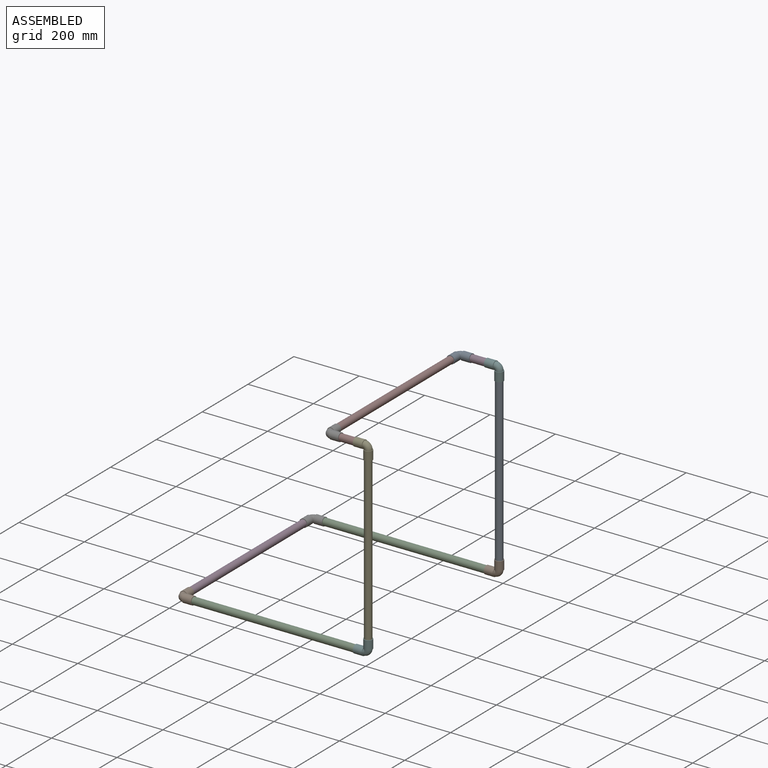
[diagram: assembled view]
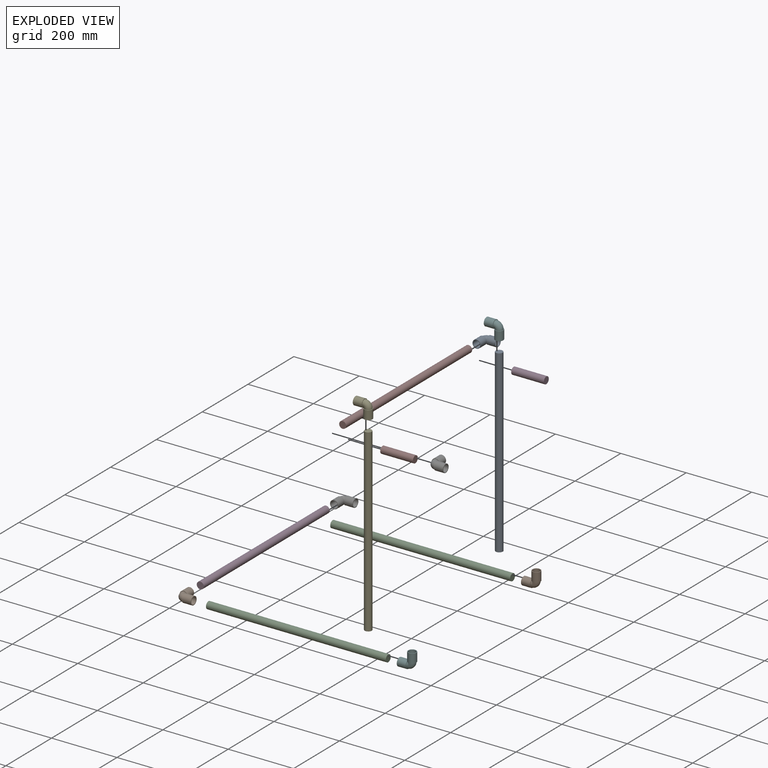
[diagram: exploded view]
GUIDED TOUR — MATED ASSEMBLY (Onshape document 93fc1fb9983ccf2371b93f54, AutoMate assembly 93fc1fb9983ccf2371b93f54_cd31502f067ef9bacffe31df_4b1e59dd0385b59e3c4ed5b4_default)

This assembly has 16 components, labeled P0..P15 below (a component is one placed occurrence of a part; the same part can appear more than once), held together by 15 mates. A mate is a constraint between two components; its type names the relative motion it leaves free:
  FASTENED — locks the two components together rigidly (no relative motion).
Axis/direction vectors are unit vectors and 'through' points are millimeter coordinates, both in the assembly's world frame.

MATES
  1. FASTENED "Fastened 8": P0 <-> P7, direction (0.000, -1.000, 0.000) through (-176.52, 364.74, 95.47) mm
  2. FASTENED "Fastened 8": P6 <-> P11, direction (0.000, -1.000, 0.000) through (-626.52, 364.74, -476.53) mm
  3. FASTENED "Fastened 2": P8 <-> P13, direction (0.000, 0.000, 1.000) through (-54.52, 375.74, 84.47) mm
  4. FASTENED "Fastened 11": P3 <-> P13, direction (1.000, 0.000, 0.000) through (-65.52, 375.74, 95.47) mm
  5. FASTENED "Fastened 4": P8 <-> P9, direction (0.000, 0.000, -1.000) through (-54.52, 375.74, -465.53) mm
  6. FASTENED "Fastened 9": P7 <-> P14, direction (0.000, -1.000, 0.000) through (-176.52, -185.26, 95.47) mm
  7. FASTENED "Fastened 10": P6 <-> P10, direction (1.000, 0.000, 0.000) through (-615.52, 375.74, -476.53) mm
  8. FASTENED "Fastened 5": P5 <-> P2, direction (-1.000, 0.000, 0.000) through (-65.52, -196.26, -476.53) mm
  9. FASTENED "Fastened 7": P1 <-> P2, direction (1.000, 0.000, 0.000) through (-615.52, -196.26, -476.53) mm
  10. FASTENED "Fastened 12": P4 <-> P15, direction (-1.000, 0.000, 0.000) through (-65.52, -196.26, 95.47) mm
  11. FASTENED "Fastened 1": P12 <-> P4, direction (0.000, 0.000, 1.000) through (-54.52, -196.26, 84.47) mm
  12. FASTENED "Fastened 13": P14 <-> P15, direction (1.000, 0.000, 0.000) through (-165.52, -196.26, 95.47) mm
  13. FASTENED "Fastened 6": P10 <-> P9, direction (1.000, 0.000, 0.000) through (-65.52, 375.74, -476.53) mm
  14. FASTENED "Fastened 3": P5 <-> P12, direction (0.000, 0.000, 1.000) through (-54.52, -196.26, -465.53) mm
  15. FASTENED "Fastened 9": P11 <-> P1, direction (0.000, -1.000, 0.000) through (-626.52, -185.26, -476.53) mm

ASSEMBLY ORDER
  1. P15 — the base component [order verified]
  2. P7 [order verified]
  3. P11 [order verified]
  4. P3 [order verified]
  5. P8 [order verified]
  6. P13 [order verified]
  7. P10 [order verified]
  8. P14 [order verified]
  9. P1 [order verified]
  10. P9 [order verified]
  11. P6 [order verified]
  12. P2 [order verified]
  13. P0 [order verified]
  14. P12 [order verified]
  15. P5 [order verified]
  16. P4 [order verified]
Order-tag legend:
  [order verified] — this step's position reverses a verified removal order: the component was checked to insert without passing through the ones already placed.

Of the 16 components, 8 carry the full construction recipe — the FeatureScript program that regenerates the part's solid from scratch; the rest are supplied as boundary geometry only.
Because this assembly has more than 12 components, the tour below covers the 12 most significant ones individually (every recipe-attached component first, then the largest by part volume), in assembly order; the remaining 4 are summarized together in a grouped section at the end.
Each toured component is shown spotlighted twice — in the assembled view, then in the exploded view, where a leader line traces a displaced component back to its assembled socket (saturated green if recipe-attached, orange if geometry-only; every other component desaturated gray) — followed by its recipe or geometry summary and the mates that hold it.
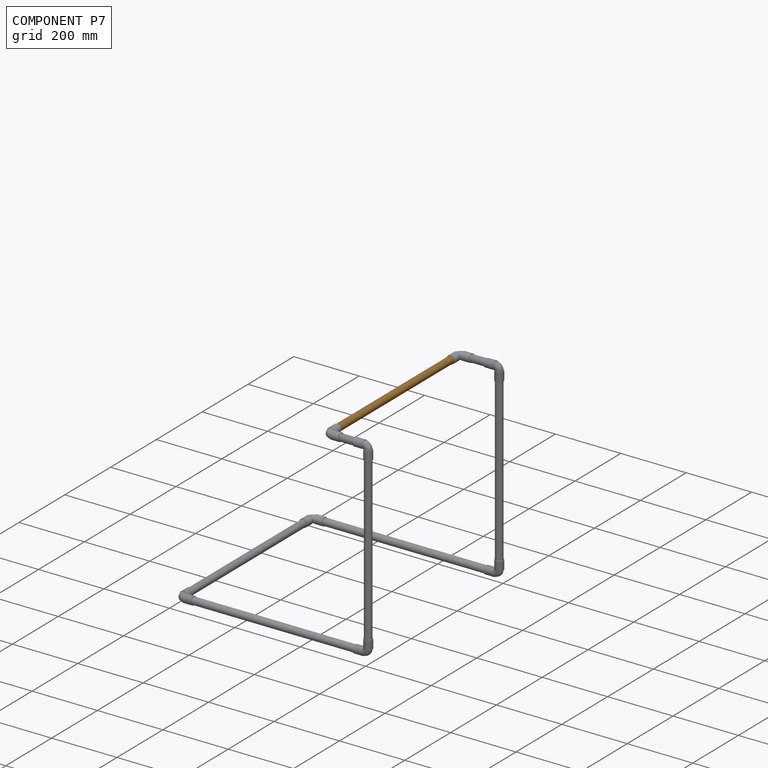
[diagram: component P7 — assembled]
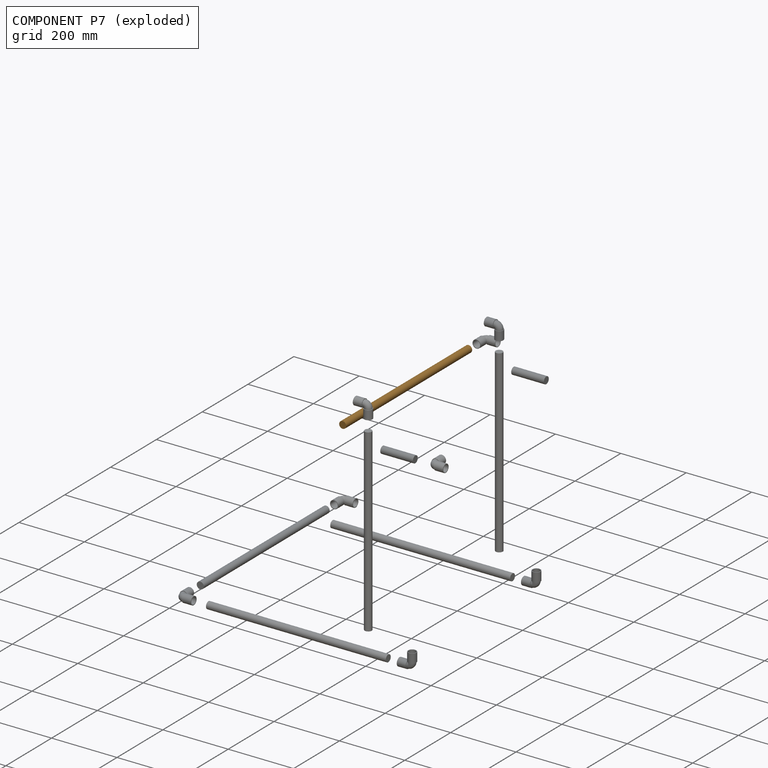
[diagram: component P7 — exploded]
COMPONENT P7 — geometry summary (no construction recipe available for this part):
  bounding box: 550.0 x 21.5 x 21.5 mm
  B-rep topology: 1 solid, 3 faces, 6 edges
  volume: 199678 mm^3 (79% of its bounding box)
  symmetry: revolution-symmetric about the x axis through its bounding-box center; 2-fold rotationally symmetric about the y axis; 2-fold rotationally symmetric about the z axis; mirror-symmetric across its x mid-plane, y mid-plane, z mid-plane
Held by: FASTENED mate "Fastened 8" to P0; FASTENED mate "Fastened 9" to P14.
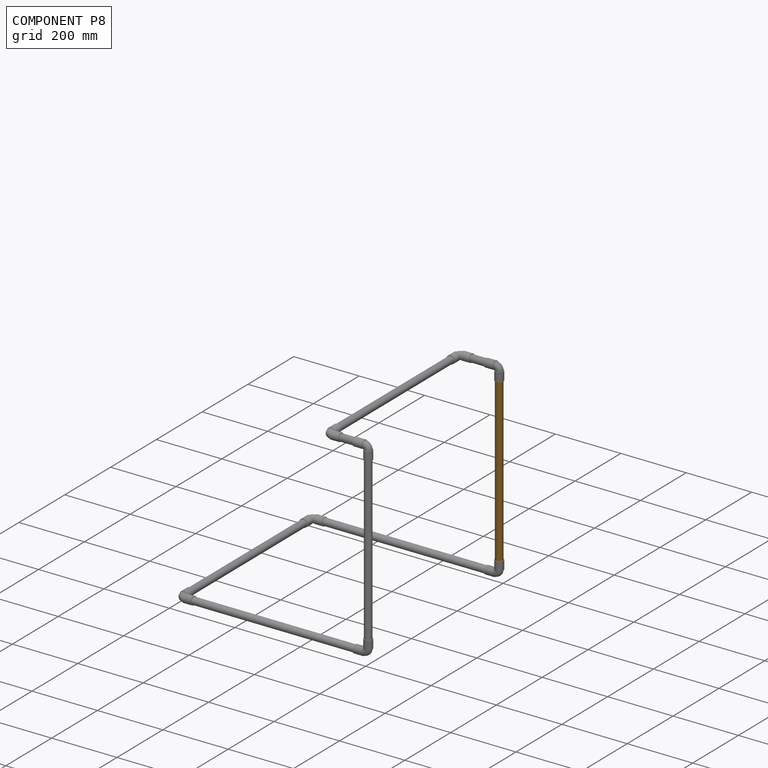
[diagram: component P8 — assembled]
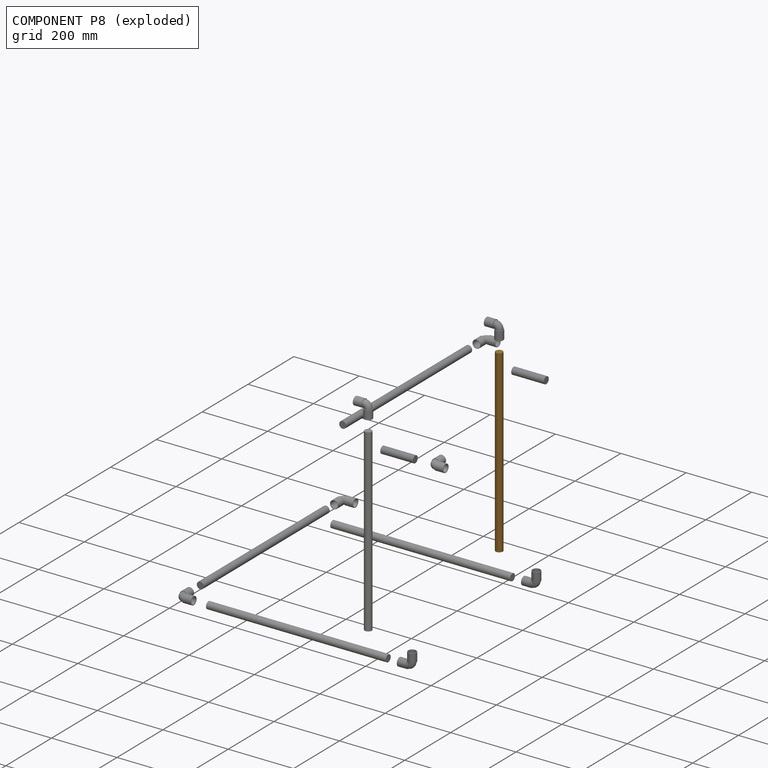
[diagram: component P8 — exploded]
COMPONENT P8 — geometry summary (no construction recipe available for this part):
  bounding box: 550.0 x 21.5 x 21.5 mm
  B-rep topology: 1 solid, 3 faces, 6 edges
  volume: 199678 mm^3 (79% of its bounding box)
  symmetry: revolution-symmetric about the x axis through its bounding-box center; 2-fold rotationally symmetric about the y axis; 2-fold rotationally symmetric about the z axis; mirror-symmetric across its x mid-plane, y mid-plane, z mid-plane
Held by: FASTENED mate "Fastened 2" to P13; FASTENED mate "Fastened 4" to P9.
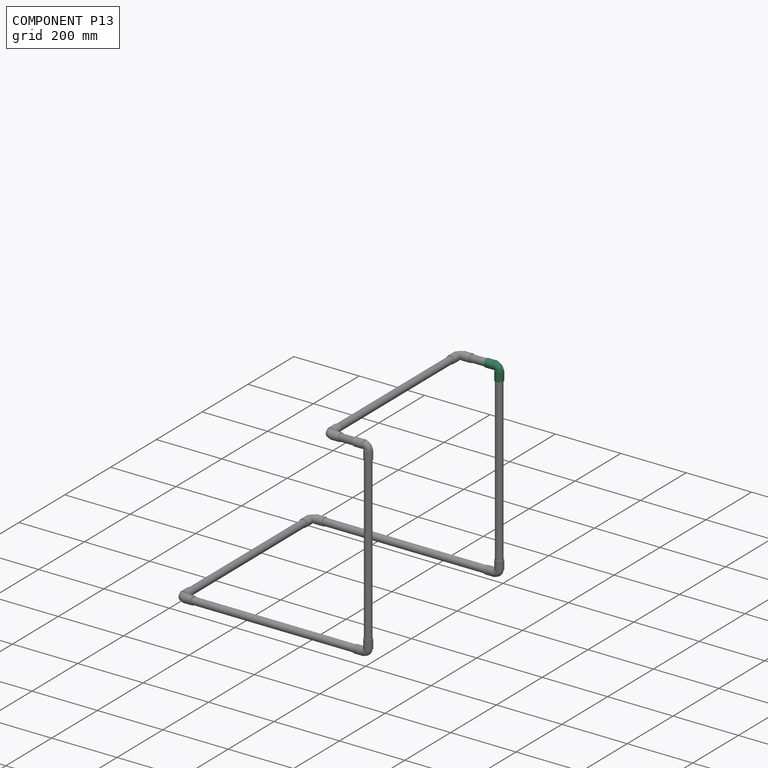
[diagram: component P13 — assembled]
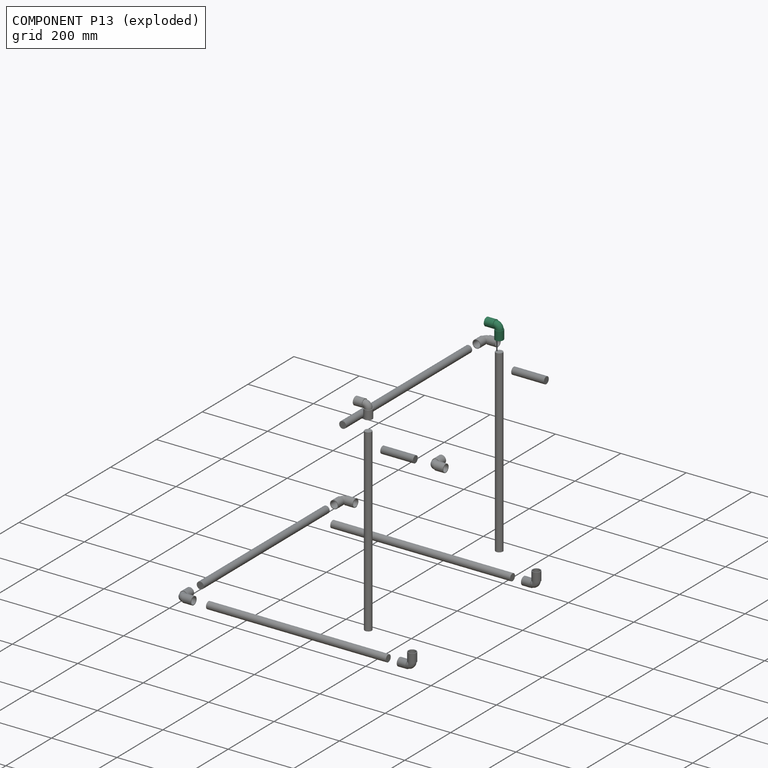
[diagram: component P13 — exploded]
COMPONENT P13 — same part as P0 (CADFS 00234429); its construction recipe is shown at P0.
Held by: FASTENED mate "Fastened 2" to P8; FASTENED mate "Fastened 11" to P3.
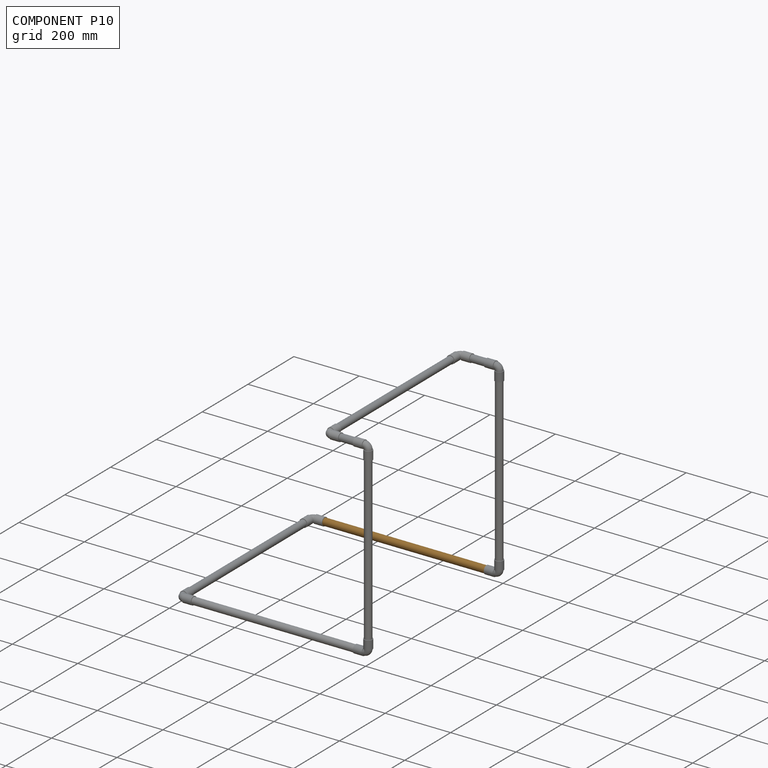
[diagram: component P10 — assembled]
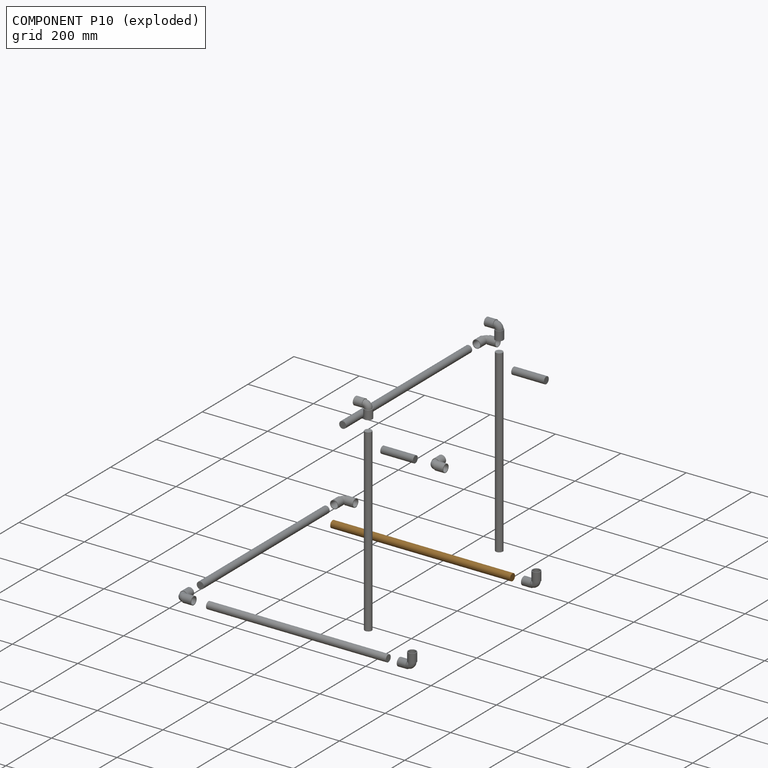
[diagram: component P10 — exploded]
COMPONENT P10 — geometry summary (no construction recipe available for this part):
  bounding box: 550.0 x 21.5 x 21.5 mm
  B-rep topology: 1 solid, 3 faces, 6 edges
  volume: 199678 mm^3 (79% of its bounding box)
  symmetry: revolution-symmetric about the x axis through its bounding-box center; 2-fold rotationally symmetric about the y axis; 2-fold rotationally symmetric about the z axis; mirror-symmetric across its x mid-plane, y mid-plane, z mid-plane
Held by: FASTENED mate "Fastened 10" to P6; FASTENED mate "Fastened 6" to P9.
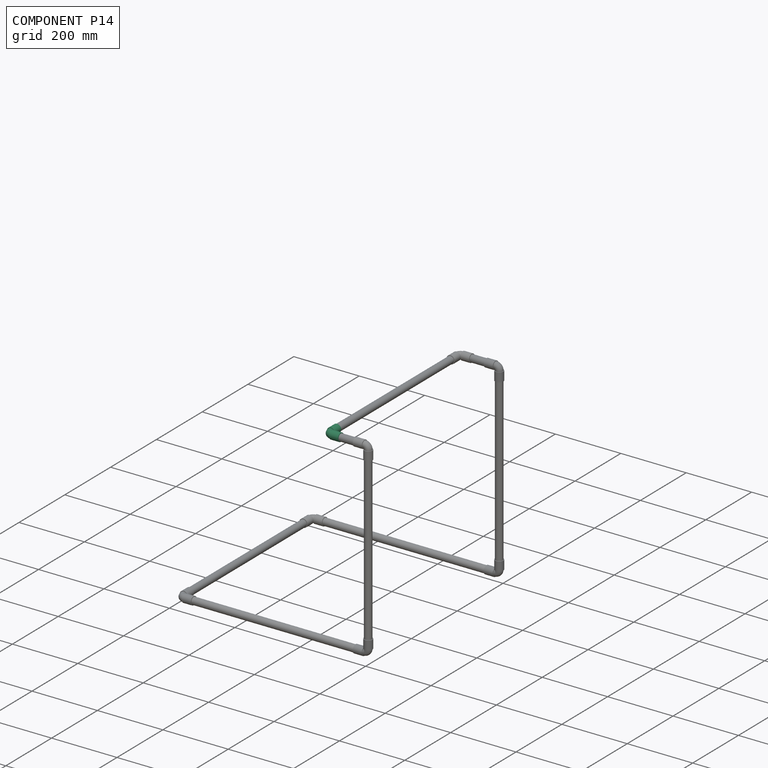
[diagram: component P14 — assembled]
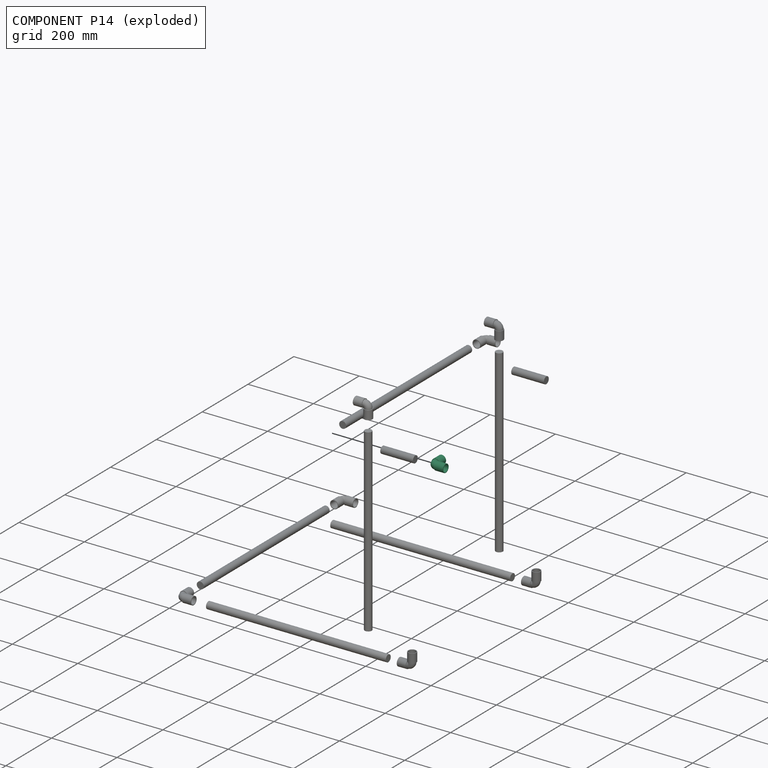
[diagram: component P14 — exploded]
COMPONENT P14 — same part as P0 (CADFS 00234429); its construction recipe is shown at P0.
Held by: FASTENED mate "Fastened 9" to P7; FASTENED mate "Fastened 13" to P15.
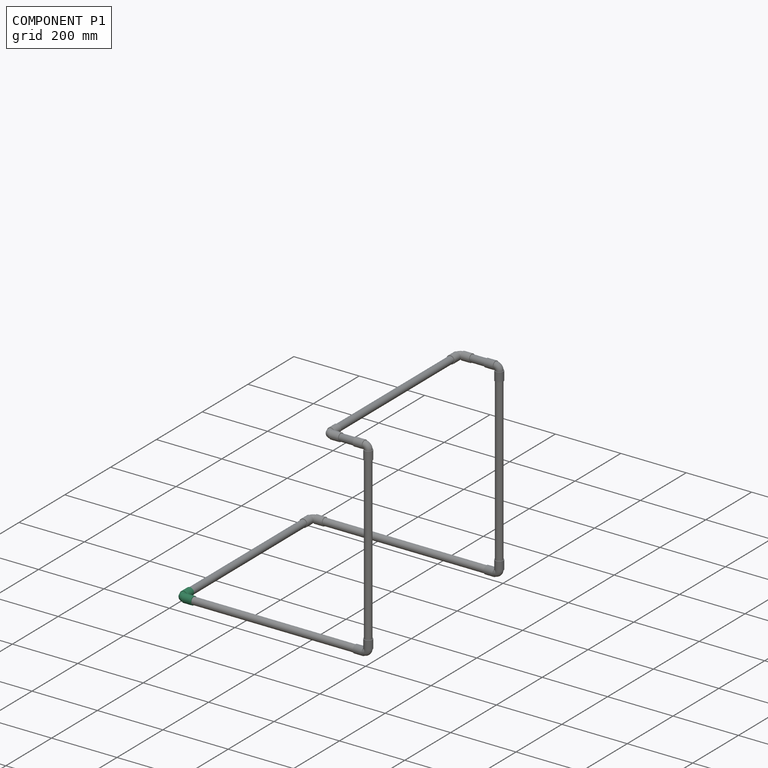
[diagram: component P1 — assembled]
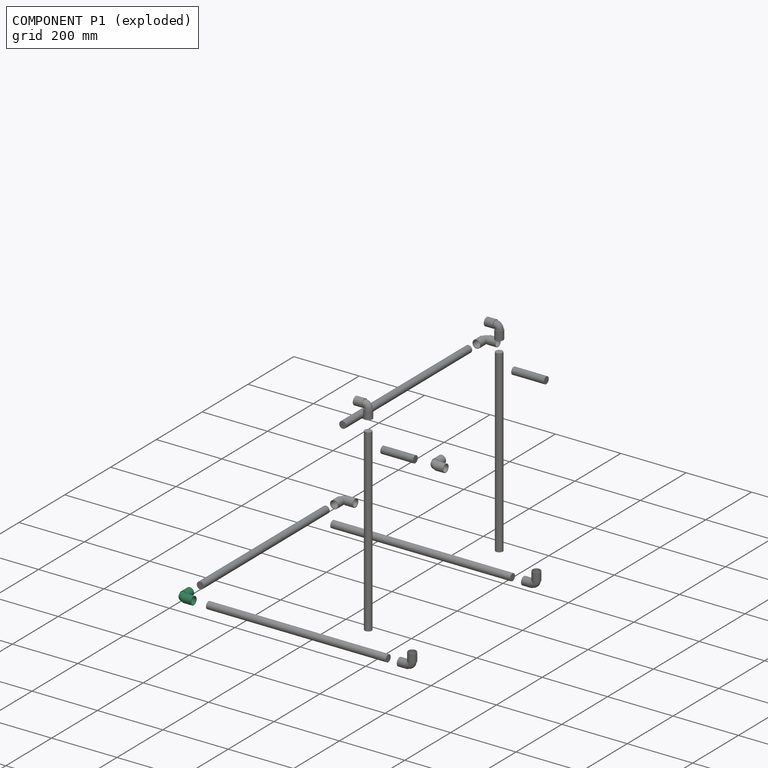
[diagram: component P1 — exploded]
COMPONENT P1 — same part as P0 (CADFS 00234429); its construction recipe is shown at P0.
Held by: FASTENED mate "Fastened 7" to P2; FASTENED mate "Fastened 9" to P11.
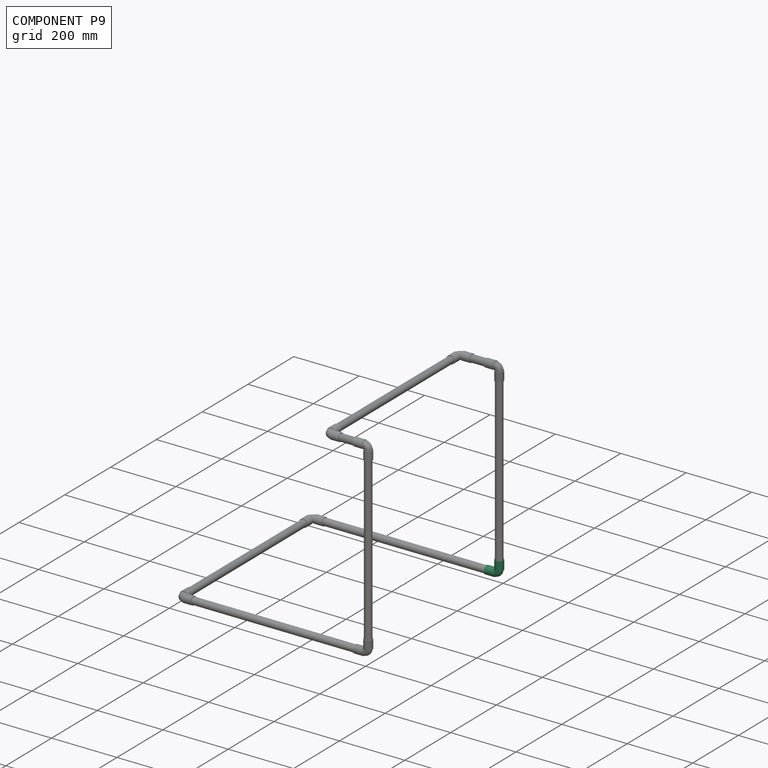
[diagram: component P9 — assembled]
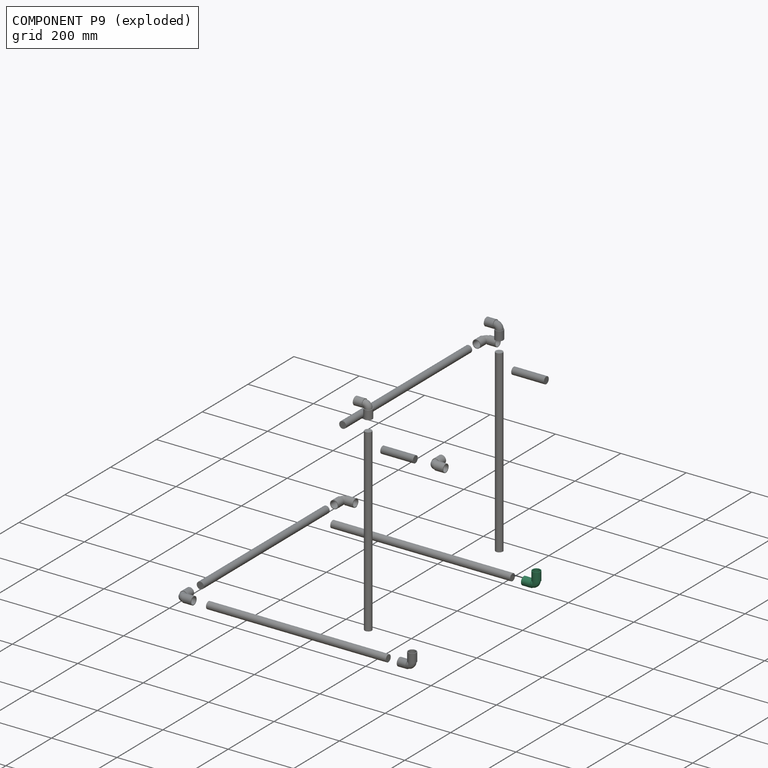
[diagram: component P9 — exploded]
COMPONENT P9 — same part as P0 (CADFS 00234429); its construction recipe is shown at P0.
Held by: FASTENED mate "Fastened 4" to P8; FASTENED mate "Fastened 6" to P10.
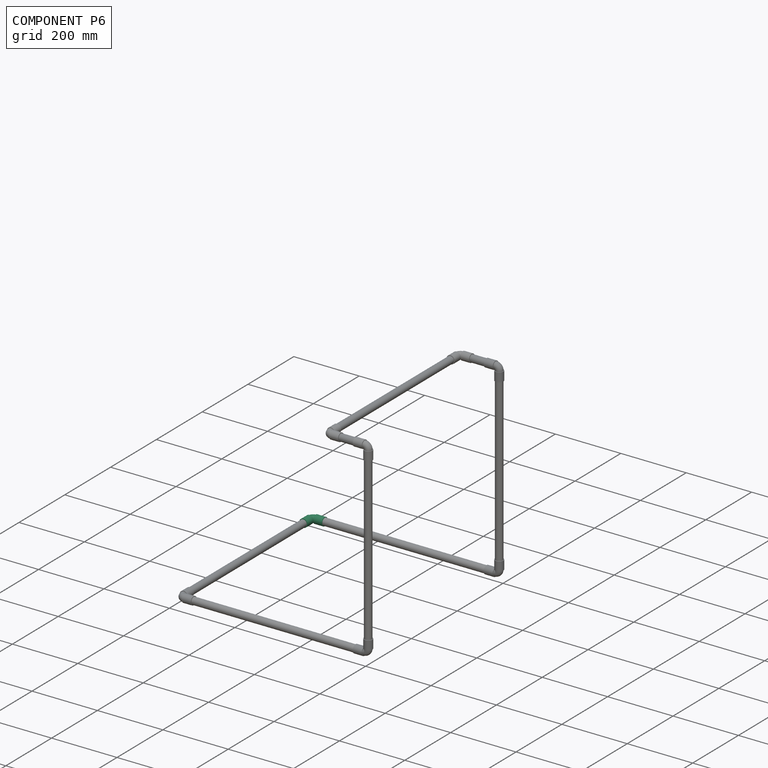
[diagram: component P6 — assembled]
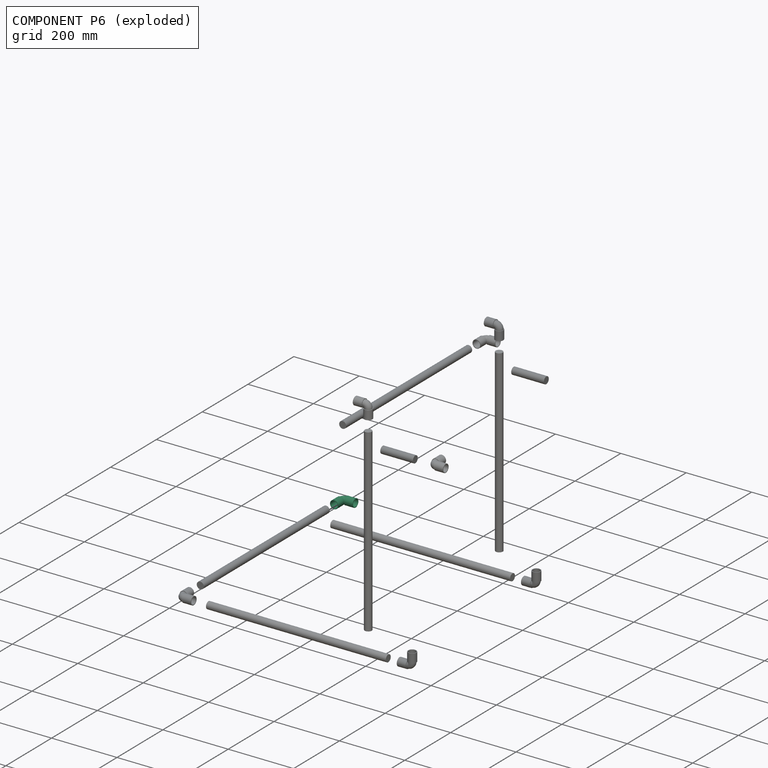
[diagram: component P6 — exploded]
COMPONENT P6 — same part as P0 (CADFS 00234429); its construction recipe is shown at P0.
Held by: FASTENED mate "Fastened 8" to P11; FASTENED mate "Fastened 10" to P10.
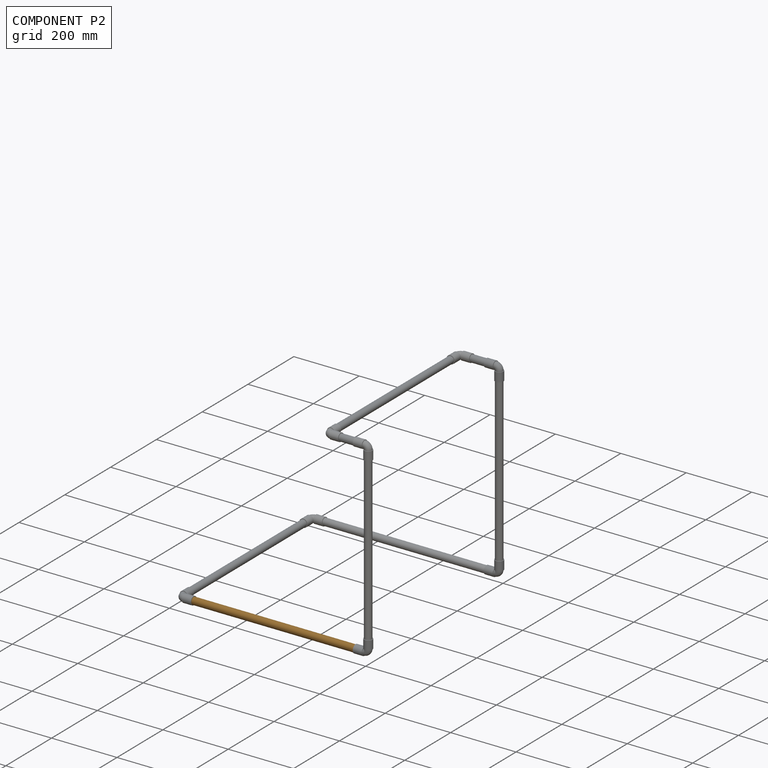
[diagram: component P2 — assembled]
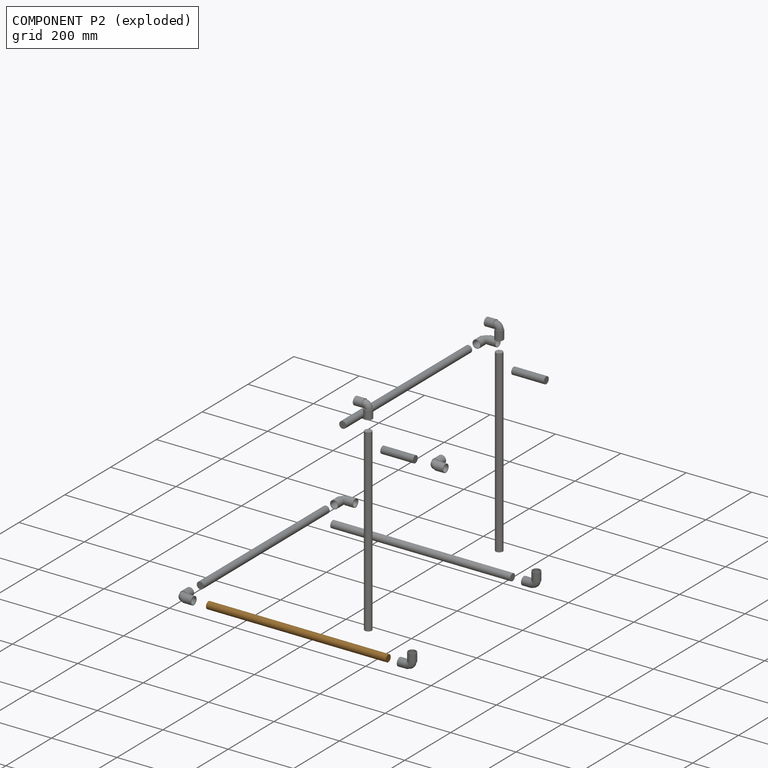
[diagram: component P2 — exploded]
COMPONENT P2 — geometry summary (no construction recipe available for this part):
  bounding box: 550.0 x 21.5 x 21.5 mm
  B-rep topology: 1 solid, 3 faces, 6 edges
  volume: 199678 mm^3 (79% of its bounding box)
  symmetry: revolution-symmetric about the x axis through its bounding-box center; 2-fold rotationally symmetric about the y axis; 2-fold rotationally symmetric about the z axis; mirror-symmetric across its x mid-plane, y mid-plane, z mid-plane
Held by: FASTENED mate "Fastened 5" to P5; FASTENED mate "Fastened 7" to P1.
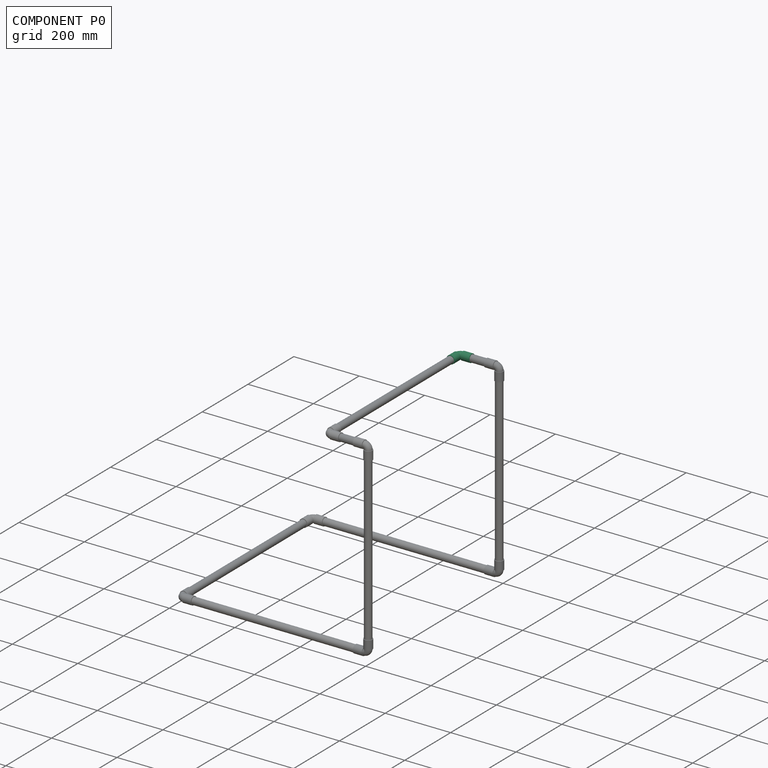
[diagram: component P0 — assembled]
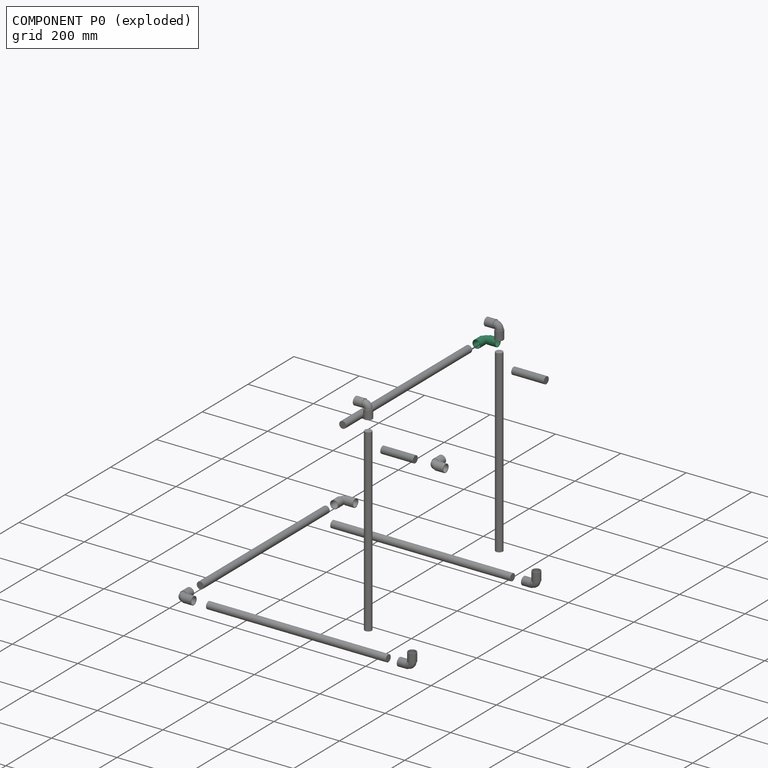
[diagram: component P0 — exploded]
COMPONENT P0 — recipe-attached (CADFS 00234429, mesh-verified: the recipe's output STEP matches this component's geometry to below the mesh-comparison resolution (tessellation chordal tolerance ~0.115 mm)).
Held by: FASTENED mate "Fastened 8" to P7.
Construction recipe (FeatureScript — the CAD program that rebuilds this solid; sketch coordinates are in the units given by the * unit suffixes, e.g. mm):

FeatureScript 1511;
import(path : "onshape/std/geometry.fs", version : "1511.0");
import(path : "onshape/std/common.fs", version : "1511.0");
const mm = millimeter;
const VERTEX = EntityType.VERTEX;
const EDGE = EntityType.EDGE;
const FACE = EntityType.FACE;
const BODY = EntityType.BODY;
function v(x, y){return vector(x, y);}
function OD(order){return orderDisambiguation(order);}
function OSD(set){return originalSetDisambiguation(set);}
function TD(topology){return topologyDisambiguation(topology);}
function TDD(query){return trueDependencyDisambiguation(query);}
function sQuery(a, b, c) {return sketchEntityQuery(a, b, c);}

annotation { "Feature Type Name" : "Feature", "Feature Type Description" : "" }
export const myFeature = defineFeature(function(context is Context, id is Id, definition is map)
    precondition{}
    {
        {
            var Q0;
            Q0=qCreatedBy(makeId("Front.planeOp"),FACE);
            var sketch = newSketch(context, id + "F0", { "sketchPlane" : qUnion([Q0])});
            skArc(sketch, "E0", {"start": v(7.78, 7.78) * mm, "mid": v(10.16, 4.2) * mm, "end": v(11, 0) * mm});
            skLineSegment(sketch, "E1", {"start": v(0, 0) * mm, "end": v(7.78, 7.78) * mm, "construction": true});
            skLineSegment(sketch, "E2.MirrorCS", {"start": v(11, 0) * mm, "end": v(11, -27.5) * mm});
            skPoint(sketch, "E3.orphan", {"position": v(0, 11) * mm});
            skSolve(sketch);
        }
        {
            var Q0;
            Q0=qCreatedBy(makeId("Top.planeOp"),FACE);
            var sketch = newSketch(context, id + "F1", { "sketchPlane" : qUnion([Q0])});
            skPoint(sketch, "E4.0", {"position": v(11, 0) * mm});
            skCircle(sketch, "E5", {"center": v(11, 0) * mm, "radius": 10.95 * mm});
            skCircle(sketch, "E6", {"center": v(11, 0) * mm, "radius": 12.55 * mm});
            skCircle(sketch, "E7", {"center": v(11, 0) * mm, "radius": 10.75 * mm});
            skCircle(sketch, "E8", {"center": v(11, 0) * mm, "radius": 9.15 * mm});
            skSolve(sketch);
        }
        {
            var Q0;
            Q0=makeQuery(id+"F1.imprint","IMPRINT",FACE,{"disambiguationData":[TD([[makeQuery(id+"F1.imprint","IMPRINT",EDGE,{"derivedFrom":sQuery(id+"F1.wireOp",EDGE,"E5")}),1.0]])]});
            var Q1;
            Q1=makeQuery(id+"F1.imprint","IMPRINT",FACE,{"disambiguationData":[TD([[makeQuery(id+"F1.imprint","IMPRINT",EDGE,{"derivedFrom":sQuery(id+"F1.wireOp",EDGE,"E7")}),1.0]])]});
            var Q2;
            Q2=sQuery(id+"F0.wireOp",EDGE,"E0");
            sweep(context, id + "F2", {"profiles" : qUnion([Q0, Q1]), "path" : qUnion([Q2])});
        }
        {
            var Q0;
            Q0=makeQuery(id+"F1.imprint","IMPRINT",FACE,{"disambiguationData":[TD([[makeQuery(id+"F1.imprint","IMPRINT",EDGE,{"derivedFrom":sQuery(id+"F1.wireOp",EDGE,"E5")}),1.0]])]});
            var Q1;
            Q1=makeQuery(id+"F1.imprint","IMPRINT",FACE,{"disambiguationData":[TD([[makeQuery(id+"F1.imprint","IMPRINT",EDGE,{"derivedFrom":sQuery(id+"F1.wireOp",EDGE,"E5")}),-1.0]])]});
            var Q2;
            Q2=sQuery(id+"F0.wireOp",EDGE,"E2.MirrorCS");
            sweep(context, id + "F3", {"operationType" : NewBodyOperationType.ADD, "profiles" : qUnion([Q0, Q1]), "path" : qUnion([Q2])});
        }
        {
            var Q0;
            Q0=makeQuery(id+"F2.opSweep","SWEPT_BODY",BODY,{"disambiguationData":[OSD([sQuery(id+"F0.wireOp",EDGE,"E0"),sQuery(id+"F1.wireOp",EDGE,"E5"),sQuery(id+"F1.wireOp",EDGE,"E8")])]});
            var Q1;
            Q1=makeQuery(id+"F2.opSweep","CAP_FACE",FACE,{"disambiguationData":[OSD([sQuery(id+"F0.wireOp",VERTEX,"E0.start"),sQuery(id+"F1.wireOp",EDGE,"E5"),sQuery(id+"F1.wireOp",EDGE,"E8")])],"isStart":false});
            mirror(context, id + "F4", {"operationType" : NewBodyOperationType.ADD, "entities" : qUnion([Q0]), "mirrorPlane" : qUnion([Q1])});
        }
    });
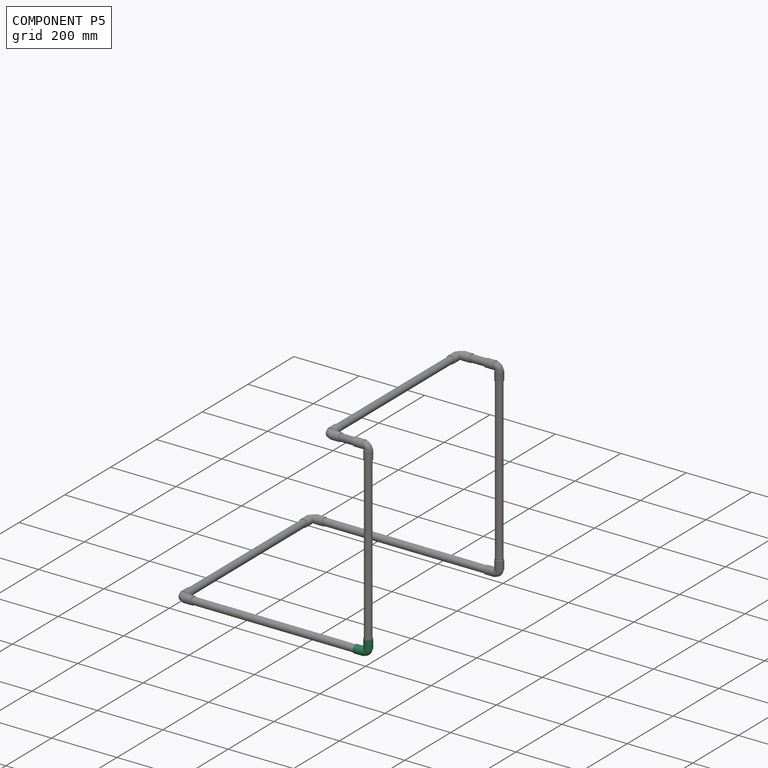
[diagram: component P5 — assembled]
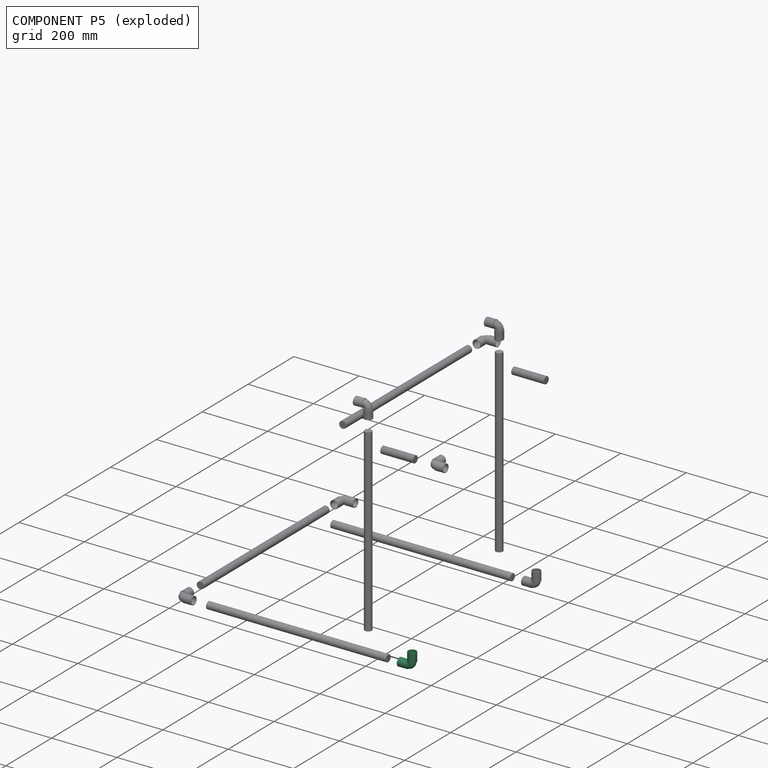
[diagram: component P5 — exploded]
COMPONENT P5 — same part as P0 (CADFS 00234429); its construction recipe is shown at P0.
Held by: FASTENED mate "Fastened 5" to P2; FASTENED mate "Fastened 3" to P12.
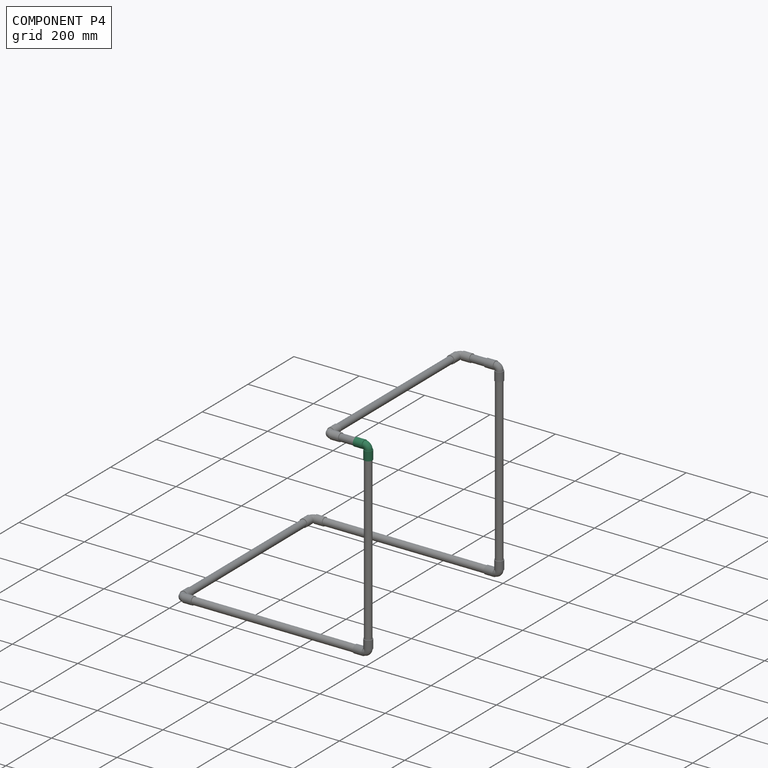
[diagram: component P4 — assembled]
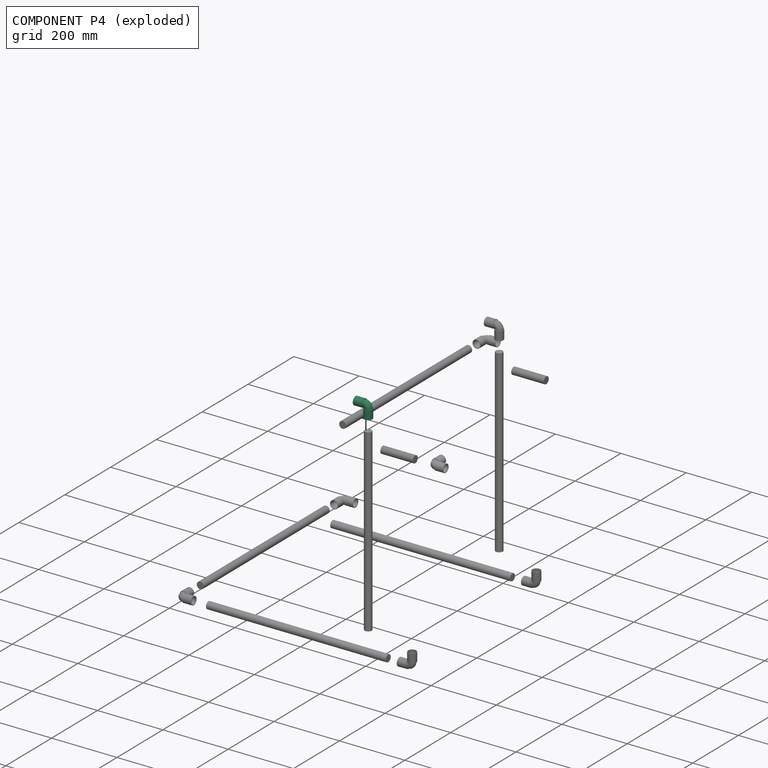
[diagram: component P4 — exploded]
COMPONENT P4 — same part as P0 (CADFS 00234429); its construction recipe is shown at P0.
Held by: FASTENED mate "Fastened 12" to P15; FASTENED mate "Fastened 1" to P12.
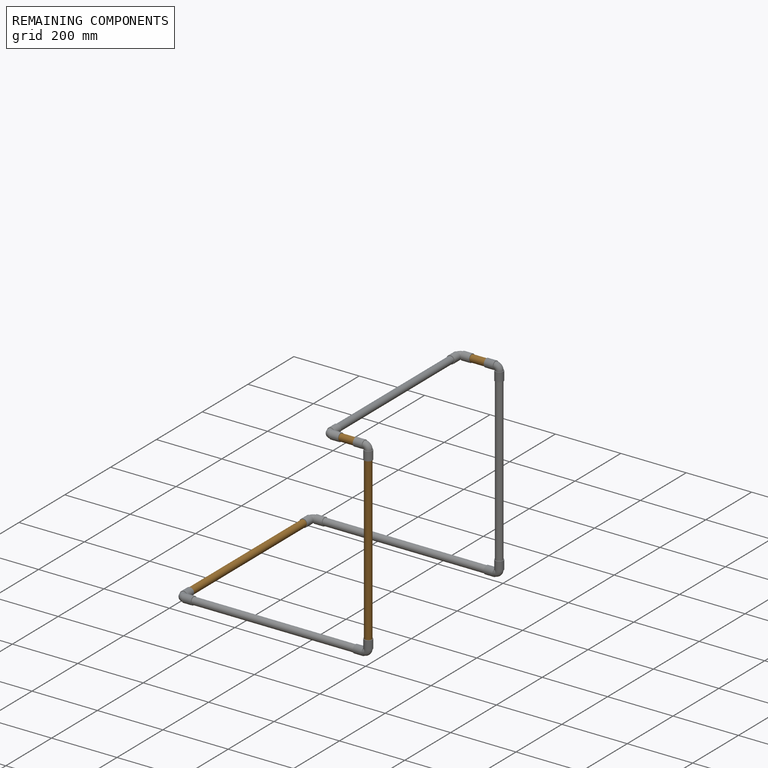
[diagram: remaining components — assembled]
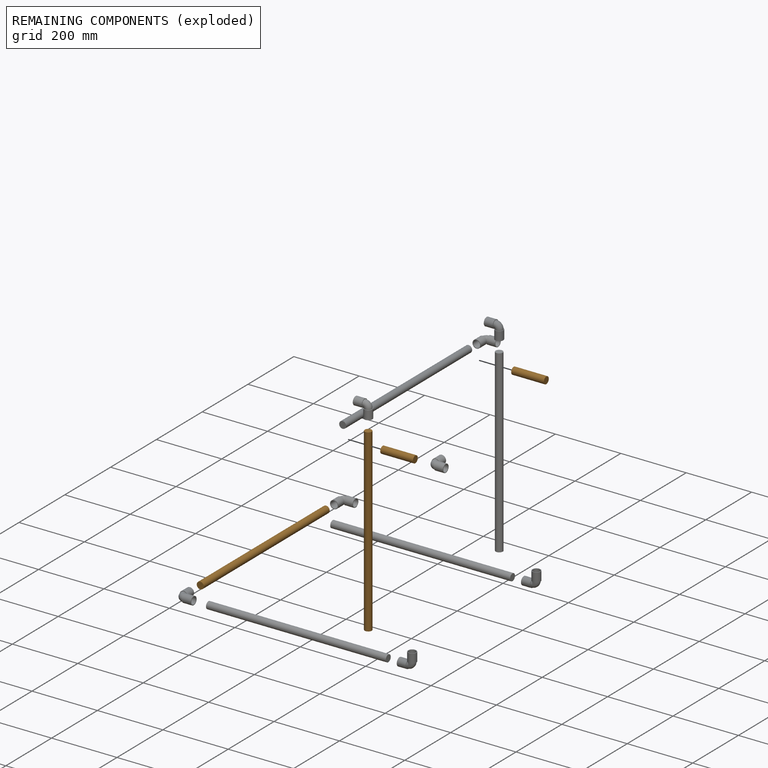
[diagram: remaining components — exploded]
REMAINING COMPONENTS (grouped) — the 4 components below fall outside the per-component tour by the significance rule stated above; both spotlight views highlight the whole group.
  P15: bounding box 100.0 x 21.5 x 21.5 mm, volume 36305 mm^3. Held by: FASTENED mate "Fastened 12" to P4; FASTENED mate "Fastened 13" to P14.
  P11: bounding box 550.0 x 21.5 x 21.5 mm, volume 199678 mm^3. Held by: FASTENED mate "Fastened 8" to P6; FASTENED mate "Fastened 9" to P1.
  P3: bounding box 100.0 x 21.5 x 21.5 mm, volume 36305 mm^3. Held by: FASTENED mate "Fastened 11" to P13.
  P12: bounding box 550.0 x 21.5 x 21.5 mm, volume 199678 mm^3. Held by: FASTENED mate "Fastened 1" to P4; FASTENED mate "Fastened 3" to P5.
PROVENANCE & LICENSES
Assembly (occurrences, transforms, mates, per-part STEP geometry): AutoMate dataset, Zenodo record 7776208, CC0.
Construction recipes: CADFS (HuggingFace VladPyatov/CADFS, CC-BY-4.0, layered over the ABC dataset), FeatureScript reconstruction programs keyed by ABC model id.
Join: ABC meta listings map ABC model id -> Onshape documentId; within a shared document, parts are matched by geometric signature (bounding-box dims + volume at 0.1% relative tolerance, exact B-rep face/solid counts).
Verification: 8 of this assembly's 16 components carry a recipe attachment, and every attachment is mesh-verified: the CADFS STEP and the AutoMate member STEP were compared as meshes in their shared local frame (symmetric sampled-point-to-mesh distance); worst across the 8 attachments: below the mesh-comparison resolution (tessellation chordal tolerance ~0.115 mm) on a 76 mm part.
Renders: orthographic iso camera (az 35 / el 25); the floor grid conveys scale (grid pitch printed in each image; no ruler). In the exploded view each component is displaced by its stored offset vector: the offsets alone carry the explosion direction (mate normal/axis signs are not orientation cues and do not encode it), and separation distances are assigned per mate-chain, not proportionally to assembly-order depth.
